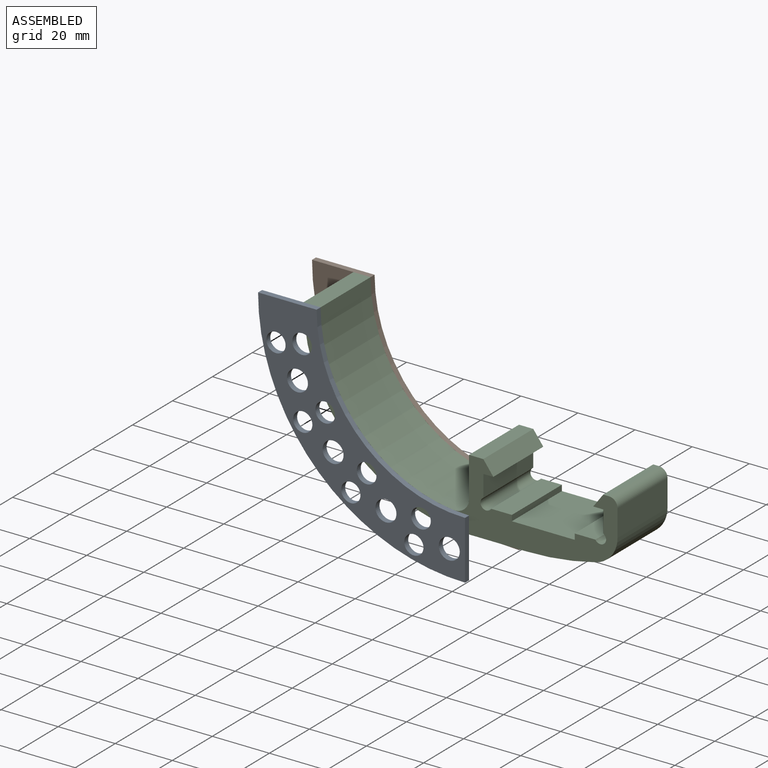
[diagram: assembled view]
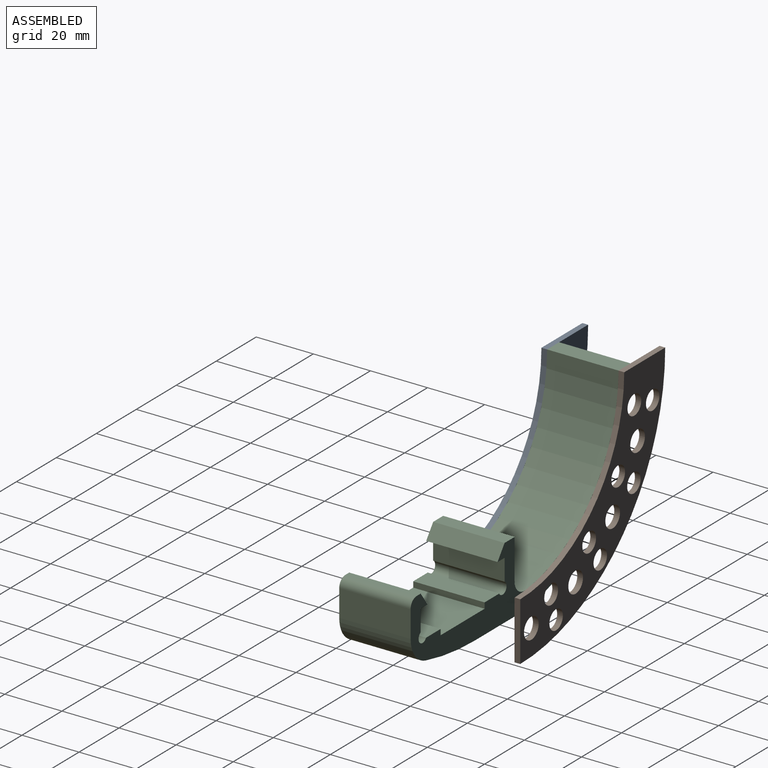
[diagram: assembled view, second angle]
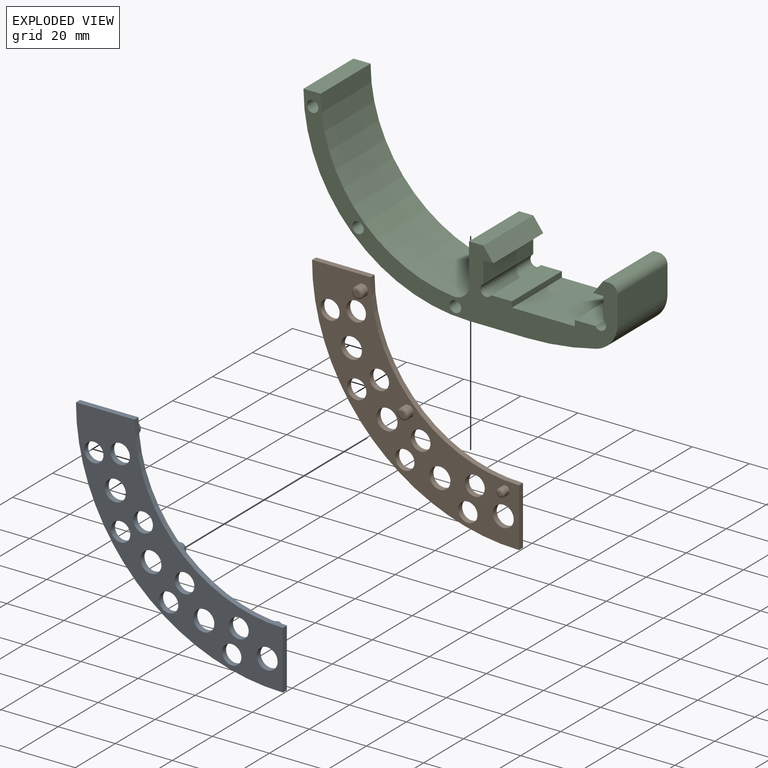
[diagram: exploded view]
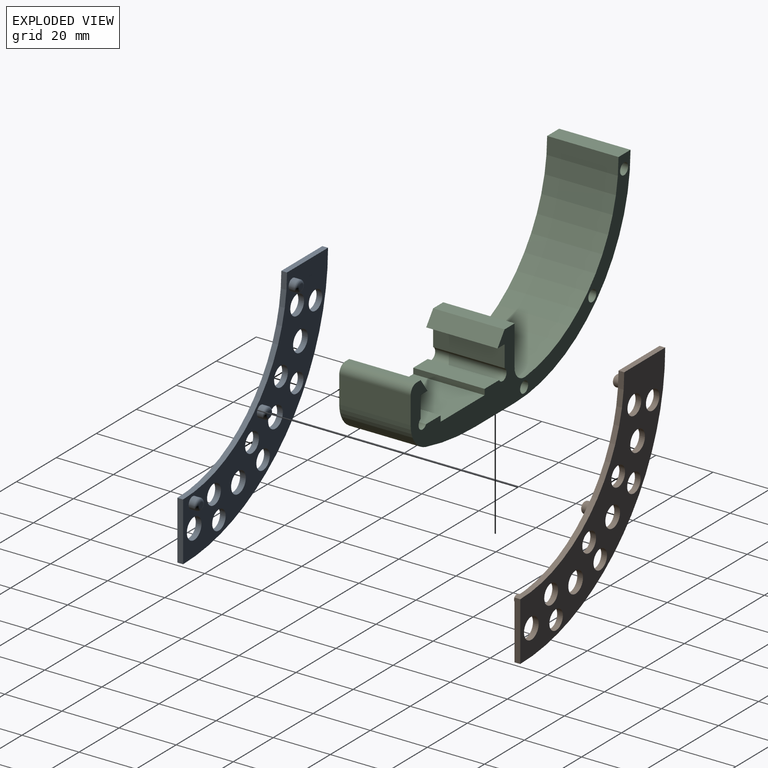
[diagram: exploded view, second angle]
ASSEMBLY  parts=3 mates=4
PART A: 27 faces, bbox 72.5x5x72.5 mm
  f0: cylinder r=72.5mm len=72.5mm, axis (0,1,0), area 227.8mm2, adj f1,f14,f16,f17
  f1: plane 20.5x2mm, normal (-1,0,0), area 41mm2, adj f0,f2,f16,f17
  f2: cylinder r=52mm len=52mm, axis (0,1,0), area 163.4mm2, adj f1,f14,f16,f17
  f3: cylinder r=3.37mm len=6.74mm, axis (0,1,0), area 42.3mm2, adj f16,f17
  f4: cylinder r=3.44mm len=6.89mm, axis (0,1,0), area 43.3mm2, adj f16,f17
  f5: cylinder r=3.67mm len=7.34mm, axis (0,1,0), area 46.1mm2, adj f16,f17
  f6: cylinder r=3.44mm len=6.89mm, axis (0,1,0), area 43.3mm2, adj f16,f17
  f7: cylinder r=3.37mm len=6.74mm, axis (0,1,0), area 42.3mm2, adj f16,f17
  f8: cylinder r=3.37mm len=6.74mm, axis (0,1,0), area 42.3mm2, adj f16,f17
  f9: cylinder r=3.67mm len=7.34mm, axis (0,1,0), area 46.1mm2, adj f16,f17
  f10: cylinder r=3.44mm len=6.89mm, axis (0,1,0), area 43.3mm2, adj f16,f17
  f11: cylinder r=3.67mm len=7.34mm, axis (0,1,0), area 46.1mm2, adj f16,f17
  f12: cylinder r=3.44mm len=6.89mm, axis (0,1,0), area 43.3mm2, adj f16,f17
  f13: cylinder r=3.37mm len=6.74mm, axis (0,1,0), area 42.3mm2, adj f16,f17
  f14: plane 20.5x2mm, normal (0,0,-1), area 41mm2, adj f0,f2,f16,f17
  f15: cylinder r=3.67mm len=7.34mm, axis (0,1,0), area 46.1mm2, adj f16,f17
  f16: plane 72.5x72.5mm, normal (0,-1,0), area 1543.8mm2, adj f0,f1,f2,f3,f4,f5,f6,f7
  f17: plane 72.5x72.5mm, normal (0,1,0), area 1506.1mm2, adj f0,f1,f2,f3,f4,f5,f6,f7
  f18: torus R=1mm, axis (0,-1,0), area 16.2mm2, adj f19,f20
  f19: plane 2x2mm, normal (0,1,0), area 3.1mm2, adj f18
  f20: cylinder r=2mm len=4mm, axis (0,-1,0), area 25.1mm2, adj f17,f18
  f21: torus R=1mm, axis (0,-1,0), area 16.2mm2, adj f22,f23
  f22: plane 2x2mm, normal (0,1,0), area 3.1mm2, adj f21
  f23: cylinder r=2mm len=4mm, axis (0,-1,0), area 25.1mm2, adj f17,f21
  f24: torus R=1mm, axis (0,-1,0), area 16.2mm2, adj f25,f26
  f25: plane 2x2mm, normal (0,1,0), area 3.1mm2, adj f24
  f26: cylinder r=2mm len=4mm, axis (0,-1,0), area 25.1mm2, adj f17,f24
PART B: 27 faces, bbox 72.5x5x72.5 mm
  f0: cylinder r=72.5mm len=72.5mm, axis (0,1,0), area 227.8mm2, adj f1,f14,f16,f17
  f1: plane 20.5x2mm, normal (-1,0,0), area 41mm2, adj f0,f2,f16,f17
  f2: cylinder r=52mm len=52mm, axis (0,1,0), area 163.4mm2, adj f1,f14,f16,f17
  f3: cylinder r=3.37mm len=6.74mm, axis (0,1,0), area 42.3mm2, adj f16,f17
  f4: cylinder r=3.44mm len=6.89mm, axis (0,1,0), area 43.3mm2, adj f16,f17
  f5: cylinder r=3.67mm len=7.34mm, axis (0,1,0), area 46.1mm2, adj f16,f17
  f6: cylinder r=3.44mm len=6.89mm, axis (0,1,0), area 43.3mm2, adj f16,f17
  f7: cylinder r=3.37mm len=6.74mm, axis (0,1,0), area 42.3mm2, adj f16,f17
  f8: cylinder r=3.37mm len=6.74mm, axis (0,1,0), area 42.3mm2, adj f16,f17
  f9: cylinder r=3.67mm len=7.34mm, axis (0,1,0), area 46.1mm2, adj f16,f17
  f10: cylinder r=3.44mm len=6.89mm, axis (0,1,0), area 43.3mm2, adj f16,f17
  f11: cylinder r=3.67mm len=7.34mm, axis (0,1,0), area 46.1mm2, adj f16,f17
  f12: cylinder r=3.44mm len=6.89mm, axis (0,1,0), area 43.3mm2, adj f16,f17
  f13: cylinder r=3.37mm len=6.74mm, axis (0,1,0), area 42.3mm2, adj f16,f17
  f14: plane 20.5x2mm, normal (0,0,-1), area 41mm2, adj f0,f2,f16,f17
  f15: cylinder r=3.67mm len=7.34mm, axis (0,1,0), area 46.1mm2, adj f16,f17
  f16: plane 72.5x72.5mm, normal (0,-1,0), area 1511.6mm2, adj f0,f1,f2,f3,f4,f5,f6,f7
  f17: plane 72.5x72.5mm, normal (0,1,0), area 1543.8mm2, adj f0,f1,f2,f3,f4,f5,f6,f7
  f18: cylinder r=2mm len=4mm, axis (0,1,0), area 25.1mm2, adj f16,f24
  f19: plane 2x2mm, normal (0,-1,0), area 3.1mm2, adj f24
  f20: cylinder r=2mm len=4mm, axis (0,1,0), area 25.1mm2, adj f16,f25
  f21: plane 2x2mm, normal (0,-1,0), area 3.1mm2, adj f25
  f22: cylinder r=1.5mm len=3mm, axis (0,1,0), area 18.8mm2, adj f16,f26
  f23: plane 1x1mm, normal (0,-1,0), area 0.8mm2, adj f26
  f24: torus R=1mm, axis (0,-1,0), area 16.2mm2, adj f18,f19
  f25: torus R=1mm, axis (0,-1,0), area 16.2mm2, adj f20,f21
  f26: torus R=0.5mm, axis (0,-1,0), area 11.2mm2, adj f22,f23
PART C: 30 faces, bbox 110x25x58 mm
  f0: plane 25x19.88mm, normal (0,0,1), area 496.9mm2, adj f1,f24,f25,f28
  f1: cylinder r=58mm len=58mm, axis (0,1,0), area 2277.7mm2, adj f0,f2,f24,f25
  f2: plane 25x6mm, normal (0,0,-1), area 150mm2, adj f1,f3,f24,f25
  f3: cylinder r=52mm len=51.71mm, axis (0,1,0), area 1903.5mm2, adj f2,f24,f25,f27
  f4: plane 25x13.93mm, normal (-1,0,0), area 348.3mm2, adj f5,f24,f25,f27
  f5: plane 25x5mm, normal (0,0,-1), area 125mm2, adj f4,f6,f24,f25
  f6: plane 25x4.7mm, normal (0.8,0,-0.6), area 146.5mm2, adj f5,f7,f24,f25
  f7: plane 25x3.5mm, normal (0,0,1), area 87.5mm2, adj f6,f8,f24,f25
  f8: plane 25x7.57mm, normal (1,0,0), area 189.2mm2, adj f7,f9,f24,f25
  f9: cylinder r=2mm len=25mm, axis (0,1,0), area 183.3mm2, adj f8,f10,f24,f25
  f10: plane 25x7.27mm, normal (0,0,-1), area 181.7mm2, adj f9,f11,f24,f25
  f11: plane 25x2mm, normal (1,0,0), area 50mm2, adj f10,f12,f24,f25
  f12: plane 25x22mm, normal (0,0,-1), area 550mm2, adj f11,f13,f24,f25
  f13: plane 25x2mm, normal (-1,0,0), area 50mm2, adj f12,f14,f24,f25
  f14: plane 25x7.27mm, normal (0,0,-1), area 181.7mm2, adj f13,f15,f24,f25
  f15: cylinder r=2mm len=25mm, axis (0,1,0), area 183.3mm2, adj f14,f16,f24,f25
  f16: plane 25x7.57mm, normal (-1,0,0), area 189.2mm2, adj f15,f17,f24,f25
  f17: plane 25x3.5mm, normal (0,0,1), area 87.5mm2, adj f16,f18,f24,f25
  f18: plane 25x4.7mm, normal (-0.8,0,-0.6), area 146.5mm2, adj f17,f19,f24,f25
  f19: plane 25x2mm, normal (0,0,-1), area 50mm2, adj f18,f24,f25,f26
  f20: plane 25x9.44mm, normal (1,0,0), area 236mm2, adj f24,f25,f26,f29
  f21: cylinder r=2mm len=25mm, axis (0,1,0), area 314.2mm2, adj f24,f25
  f22: cylinder r=2mm len=25mm, axis (0,1,0), area 314.2mm2, adj f24,f25
  f23: cylinder r=2mm len=25mm, axis (0,1,0), area 314.2mm2, adj f24,f25
  f24: plane 110x58mm, normal (0,-1,0), area 1061.7mm2, adj f0,f1,f2,f3,f4,f5,f6,f7
  f25: plane 110x58mm, normal (0,1,0), area 1061.7mm2, adj f0,f1,f2,f3,f4,f5,f6,f7
  f26: cylinder r=3mm len=25mm, axis (0,1,0), area 117.8mm2, adj f19,f20,f24,f25
  f27: cylinder r=5mm len=25mm, axis (0,1,0), area 209.7mm2, adj f3,f4,f24,f25
  f28: cylinder r=100mm len=25mm, axis (0,1,0), area 620.9mm2, adj f0,f24,f25,f29
  f29: cylinder r=10mm len=25mm, axis (0,1,0), area 330.6mm2, adj f20,f24,f25,f28
PLACE A rot(axis=(0,-1,0),180deg) t=(-157.7,-54.85,154.68)mm
PLACE B rot(axis=(0,-1,0),180deg) t=(-157.7,-27.85,154.68)mm
PLACE C rot(axis=(1,0,0),180deg) t=(-157.7,-54.85,121.88)mm
MATE revolute C.f23 <-> B.f22  axis (0,1,0) through (-162.49,-29.85,99.89)mm
MATE revolute B.f18 <-> C.f22  axis (0,-1,0) through (-212.49,-29.85,149.88)mm
MATE revolute A.f18 <-> C.f22  axis (0,1,0) through (-212.49,-54.85,149.88)mm
MATE revolute A.f24 <-> C.f23  axis (0,1,0) through (-162.49,-54.85,99.89)mm
